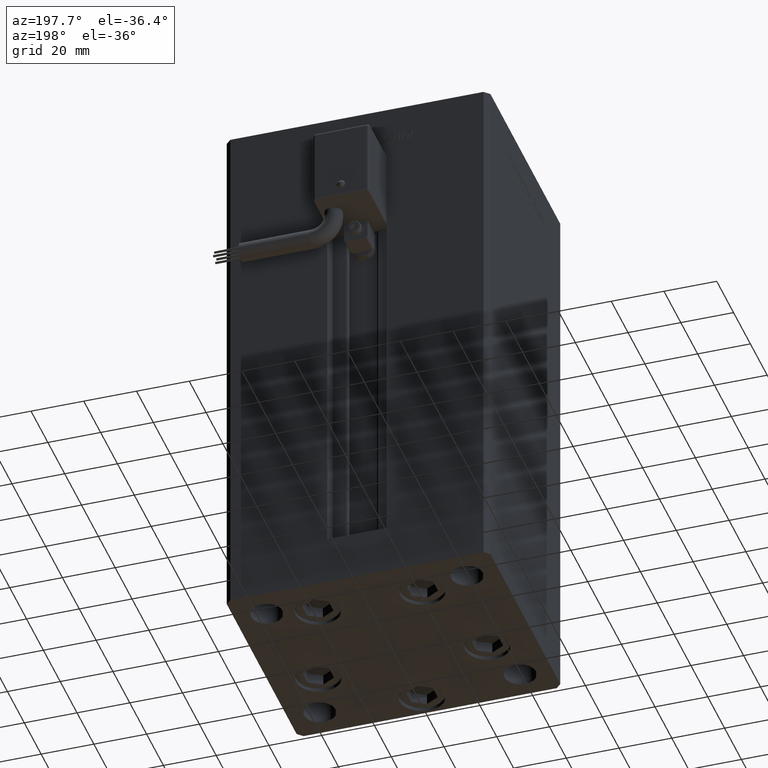
[diagram: clean part render]
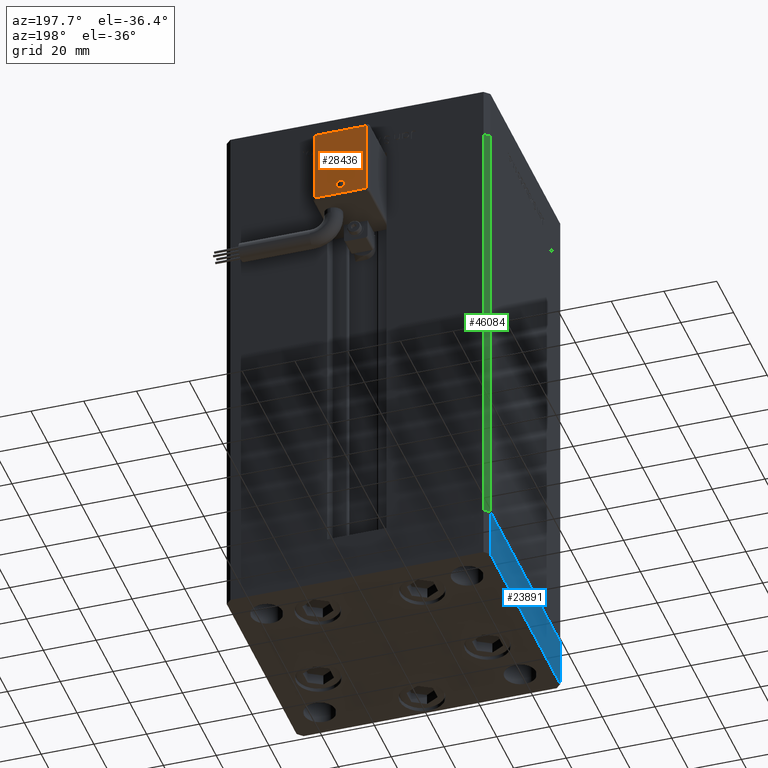
[diagram: same view with three faces highlighted in distinct colors, each labeled with its STEP entity id]
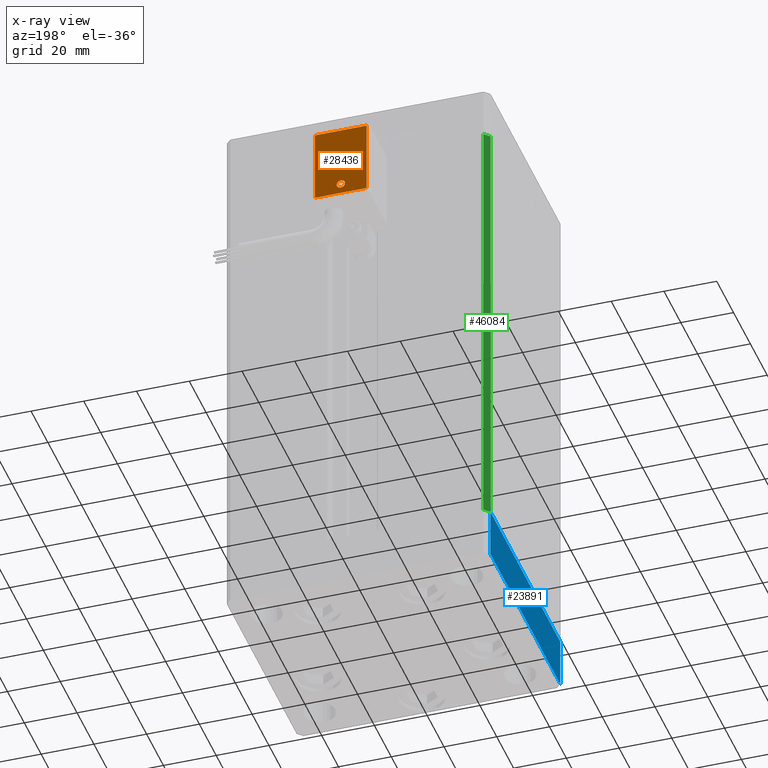
[diagram: x-ray of the same camera — body ghosted, the three highlighted faces saturated]
A machine part, auxiliary view with three faces highlighted in distinct colors.
The next image is the same camera in x-ray (body ghosted, the three faces saturated) — at least one of them is partly hidden behind the body in this view.
Their STEP definitions:

[orange] entity #28436 — the highlighted planar face has unit normal (0, 1, 0).
#1149 = ORIENTED_EDGE ( 'NONE', *, *, #29484, .T. ) ;
#3149 = CARTESIAN_POINT ( 'NONE',  ( -2.664535259099999904E-33, 51.59999999999998721, 1.277460843040079085E-14 ) ) ;
#5206 = EDGE_LOOP ( 'NONE', ( #10152, #36069, #39854, #1149 ) ) ;
#5409 = DIRECTION ( 'NONE',  ( 1.000000000000000000, 0.000000000000000000, 0.000000000000000000 ) ) ;
#6327 = FACE_OUTER_BOUND ( 'NONE', #5206, .T. ) ;
#6608 = LINE ( 'NONE', #14984, #11442 ) ;
#10152 = ORIENTED_EDGE ( 'NONE', *, *, #45351, .T. ) ;
#11442 = VECTOR ( 'NONE', #23362, 1000.000000000000000 ) ;
#11941 = VECTOR ( 'NONE', #44947, 1000.000000000000000 ) ;
#13310 = VERTEX_POINT ( 'NONE', #14138 ) ;
#13401 = VERTEX_POINT ( 'NONE', #50877 ) ;
#13919 = AXIS2_PLACEMENT_3D ( 'NONE', #16448, #33456, #25092 ) ;
#13920 = CARTESIAN_POINT ( 'NONE',  ( 9.799999999999998934, 51.60000000000000142, -54.00000000000000000 ) ) ;
#14026 = CARTESIAN_POINT ( 'NONE',  ( -9.799999999999998934, 51.60000000000000142, -54.00000000000000000 ) ) ;
#14138 = CARTESIAN_POINT ( 'NONE',  ( -9.799999999999998934, 51.59999999999999432, -26.00000000000000000 ) ) ;
#14984 = CARTESIAN_POINT ( 'NONE',  ( 9.799999999999998934, 51.60000000000000142, -54.00000000000000000 ) ) ;
#16448 = CARTESIAN_POINT ( 'NONE',  ( 1.122044604924999863E-14, 51.60000000000000142, -50.00000000000000000 ) ) ;
#17978 = VERTEX_POINT ( 'NONE', #14026 ) ;
#19120 = CARTESIAN_POINT ( 'NONE',  ( 9.799999999999998934, 51.59999999999999432, -26.00000000000000000 ) ) ;
#20165 = ORIENTED_EDGE ( 'NONE', *, *, #41878, .T. ) ;
#21216 = DIRECTION ( 'NONE',  ( 0.000000000000000000, -1.000000000000000000, -2.478176394252581634E-16 ) ) ;
#22440 = LINE ( 'NONE', #52787, #45192 ) ;
#23212 = CARTESIAN_POINT ( 'NONE',  ( 1.157444300081134802E-14, 51.60000000000000142, -51.59426053914221200 ) ) ;
#23362 = DIRECTION ( 'NONE',  ( -1.000000000000000000, 0.000000000000000000, 0.000000000000000000 ) ) ;
#24649 = PLANE ( 'NONE',  #25276 ) ;
#24789 = AXIS2_PLACEMENT_3D ( 'NONE', #25393, #21216, #38751 ) ;
#25092 = DIRECTION ( 'NONE',  ( 0.000000000000000000, 0.000000000000000000, 1.000000000000000000 ) ) ;
#25276 = AXIS2_PLACEMENT_3D ( 'NONE', #3149, #46100, #37178 ) ;
#25393 = CARTESIAN_POINT ( 'NONE',  ( 1.122044604924999863E-14, 51.60000000000000142, -50.00000000000000000 ) ) ;
#26750 = EDGE_LOOP ( 'NONE', ( #20165, #39254 ) ) ;
#28436 = ADVANCED_FACE ( 'NONE', ( #36907, #6327 ), #24649, .T. ) ;
#29484 = EDGE_CURVE ( 'NONE', #17978, #13310, #30761, .T. ) ;
#30117 = CIRCLE ( 'NONE', #24789, 1.594260539142210220 ) ;
#30761 = LINE ( 'NONE', #32409, #11941 ) ;
#32409 = CARTESIAN_POINT ( 'NONE',  ( -9.799999999999998934, 51.60000000000000142, -54.00000000000000000 ) ) ;
#33199 = VERTEX_POINT ( 'NONE', #13920 ) ;
#33456 = DIRECTION ( 'NONE',  ( 0.000000000000000000, -1.000000000000000000, -2.478176394252581634E-16 ) ) ;
#35029 = LINE ( 'NONE', #19120, #44156 ) ;
#35920 = VERTEX_POINT ( 'NONE', #51791 ) ;
#36069 = ORIENTED_EDGE ( 'NONE', *, *, #40941, .T. ) ;
#36907 = FACE_BOUND ( 'NONE', #26750, .T. ) ;
#37178 = DIRECTION ( 'NONE',  ( 0.000000000000000000, -2.478176394252581634E-16, 1.000000000000000000 ) ) ;
#37540 = EDGE_CURVE ( 'NONE', #33199, #17978, #6608, .T. ) ;
#38751 = DIRECTION ( 'NONE',  ( 0.000000000000000000, 0.000000000000000000, 1.000000000000000000 ) ) ;
#39254 = ORIENTED_EDGE ( 'NONE', *, *, #46848, .T. ) ;
#39473 = DIRECTION ( 'NONE',  ( 0.000000000000000000, 2.478176394252581634E-16, -1.000000000000000000 ) ) ;
#39854 = ORIENTED_EDGE ( 'NONE', *, *, #37540, .T. ) ;
#40941 = EDGE_CURVE ( 'NONE', #13401, #33199, #35029, .T. ) ;
#41878 = EDGE_CURVE ( 'NONE', #53877, #35920, #53982, .T. ) ;
#44156 = VECTOR ( 'NONE', #39473, 1000.000000000000000 ) ;
#44947 = DIRECTION ( 'NONE',  ( 0.000000000000000000, -2.478176394252581634E-16, 1.000000000000000000 ) ) ;
#45192 = VECTOR ( 'NONE', #5409, 1000.000000000000000 ) ;
#45351 = EDGE_CURVE ( 'NONE', #13310, #13401, #22440, .T. ) ;
#46100 = DIRECTION ( 'NONE',  ( -0.000000000000000000, 1.000000000000000000, 2.478176394252581634E-16 ) ) ;
#46848 = EDGE_CURVE ( 'NONE', #35920, #53877, #30117, .T. ) ;
#50877 = CARTESIAN_POINT ( 'NONE',  ( 9.799999999999998934, 51.59999999999999432, -26.00000000000000000 ) ) ;
#51791 = CARTESIAN_POINT ( 'NONE',  ( 1.067120849106190655E-14, 51.60000000000000142, -48.40573946085779511 ) ) ;
#52787 = CARTESIAN_POINT ( 'NONE',  ( -9.799999999999998934, 51.59999999999999432, -26.00000000000000000 ) ) ;
#53877 = VERTEX_POINT ( 'NONE', #23212 ) ;
#53982 = CIRCLE ( 'NONE', #13919, 1.594260539142210220 ) ;

[blue] entity #23891 — the highlighted planar face has unit normal (-1, 0, 0).
#1083 = DIRECTION ( 'NONE',  ( 0.000000000000000000, 0.000000000000000000, 1.000000000000000000 ) ) ;
#2808 = DIRECTION ( 'NONE',  ( -1.003213576468515193E-15, 1.000000000000000000, 0.000000000000000000 ) ) ;
#5280 = LINE ( 'NONE', #27033, #10353 ) ;
#9696 = CARTESIAN_POINT ( 'NONE',  ( 50.00000000000000000, -41.49999999999999289, 0.000000000000000000 ) ) ;
#10353 = VECTOR ( 'NONE', #1083, 1000.000000000000000 ) ;
#10673 = ORIENTED_EDGE ( 'NONE', *, *, #36086, .F. ) ;
#11080 = DIRECTION ( 'NONE',  ( -1.003213576468515193E-15, 1.000000000000000000, 0.000000000000000000 ) ) ;
#16089 = CARTESIAN_POINT ( 'NONE',  ( 50.00000000000000000, -41.49999999999999289, -19.00000000000000000 ) ) ;
#17237 = DIRECTION ( 'NONE',  ( 0.000000000000000000, 0.000000000000000000, 1.000000000000000000 ) ) ;
#18746 = LINE ( 'NONE', #41021, #26956 ) ;
#19399 = VERTEX_POINT ( 'NONE', #31739 ) ;
#19906 = AXIS2_PLACEMENT_3D ( 'NONE', #16089, #49267, #11080 ) ;
#22204 = EDGE_CURVE ( 'NONE', #44946, #19399, #18746, .T. ) ;
#23891 = ADVANCED_FACE ( 'NONE', ( #41172 ), #54268, .T. ) ;
#25598 = LINE ( 'NONE', #42593, #42139 ) ;
#25992 = ORIENTED_EDGE ( 'NONE', *, *, #22204, .T. ) ;
#26956 = VECTOR ( 'NONE', #2808, 1000.000000000000000 ) ;
#27033 = CARTESIAN_POINT ( 'NONE',  ( 50.00000000000000000, -41.49999999999999289, -19.00000000000000000 ) ) ;
#27094 = VERTEX_POINT ( 'NONE', #42861 ) ;
#28293 = EDGE_CURVE ( 'NONE', #19399, #29436, #25598, .T. ) ;
#29436 = VERTEX_POINT ( 'NONE', #51658 ) ;
#31739 = CARTESIAN_POINT ( 'NONE',  ( 49.99999999999992184, 41.49999999999998579, -19.00000000000000000 ) ) ;
#34442 = ORIENTED_EDGE ( 'NONE', *, *, #35109, .F. ) ;
#35072 = LINE ( 'NONE', #9696, #37083 ) ;
#35109 = EDGE_CURVE ( 'NONE', #44946, #27094, #5280, .T. ) ;
#35510 = EDGE_LOOP ( 'NONE', ( #10673, #34442, #25992, #55009 ) ) ;
#35619 = DIRECTION ( 'NONE',  ( -1.003213576468515193E-15, 1.000000000000000000, 0.000000000000000000 ) ) ;
#36086 = EDGE_CURVE ( 'NONE', #27094, #29436, #35072, .T. ) ;
#37083 = VECTOR ( 'NONE', #35619, 1000.000000000000000 ) ;
#41021 = CARTESIAN_POINT ( 'NONE',  ( 50.00000000000000000, -41.49999999999999289, -19.00000000000000000 ) ) ;
#41172 = FACE_OUTER_BOUND ( 'NONE', #35510, .T. ) ;
#42139 = VECTOR ( 'NONE', #17237, 1000.000000000000000 ) ;
#42593 = CARTESIAN_POINT ( 'NONE',  ( 49.99999999999992184, 41.49999999999998579, -19.00000000000000000 ) ) ;
#42861 = CARTESIAN_POINT ( 'NONE',  ( 50.00000000000000000, -41.49999999999999289, 0.000000000000000000 ) ) ;
#44946 = VERTEX_POINT ( 'NONE', #50726 ) ;
#49267 = DIRECTION ( 'NONE',  ( 1.000000000000000000, 1.003213576468515193E-15, -0.000000000000000000 ) ) ;
#50726 = CARTESIAN_POINT ( 'NONE',  ( 50.00000000000000000, -41.49999999999999289, -19.00000000000000000 ) ) ;
#51658 = CARTESIAN_POINT ( 'NONE',  ( 49.99999999999992184, 41.49999999999998579, 0.000000000000000000 ) ) ;
#54268 = PLANE ( 'NONE',  #19906 ) ;
#55009 = ORIENTED_EDGE ( 'NONE', *, *, #28293, .T. ) ;

[green] entity #46084 — the highlighted planar face has unit normal (0.7071, -0.7071, 0).
#503 = EDGE_CURVE ( 'NONE', #53820, #39958, #27046, .T. ) ;
#2687 = CARTESIAN_POINT ( 'NONE',  ( -50.00000000000001421, 41.49999999999999289, 0.000000000000000000 ) ) ;
#4363 = LINE ( 'NONE', #4642, #38023 ) ;
#4642 = CARTESIAN_POINT ( 'NONE',  ( -48.00000000000000711, 43.50000000000000000, 168.5000000000000000 ) ) ;
#5854 = DIRECTION ( 'NONE',  ( -0.7071067811865487940, -0.7071067811865463515, 0.000000000000000000 ) ) ;
#8854 = DIRECTION ( 'NONE',  ( -0.000000000000000000, -0.000000000000000000, -1.000000000000000000 ) ) ;
#8971 = VECTOR ( 'NONE', #40801, 1000.000000000000000 ) ;
#10683 = ORIENTED_EDGE ( 'NONE', *, *, #13101, .F. ) ;
#12457 = VECTOR ( 'NONE', #5854, 1000.000000000000000 ) ;
#13101 = EDGE_CURVE ( 'NONE', #43416, #39958, #46778, .T. ) ;
#15643 = EDGE_CURVE ( 'NONE', #17658, #53820, #19346, .T. ) ;
#17658 = VERTEX_POINT ( 'NONE', #40001 ) ;
#19346 = LINE ( 'NONE', #36343, #8971 ) ;
#21401 = DIRECTION ( 'NONE',  ( -0.7071067811865487940, -0.7071067811865463515, 0.000000000000000000 ) ) ;
#22233 = VECTOR ( 'NONE', #8854, 1000.000000000000000 ) ;
#27046 = LINE ( 'NONE', #44046, #12457 ) ;
#28134 = DIRECTION ( 'NONE',  ( 0.7071067811865463515, -0.7071067811865487940, 0.000000000000000000 ) ) ;
#31774 = CARTESIAN_POINT ( 'NONE',  ( -48.00000000000000711, 43.50000000000000000, 168.5000000000000000 ) ) ;
#32047 = DIRECTION ( 'NONE',  ( 0.7071067811865487940, 0.7071067811865463515, 0.000000000000000000 ) ) ;
#33776 = ORIENTED_EDGE ( 'NONE', *, *, #44612, .F. ) ;
#36215 = FACE_OUTER_BOUND ( 'NONE', #51216, .T. ) ;
#36343 = CARTESIAN_POINT ( 'NONE',  ( -48.00000000000000711, 43.50000000000000000, 168.5000000000000000 ) ) ;
#38023 = VECTOR ( 'NONE', #21401, 1000.000000000000000 ) ;
#39958 = VERTEX_POINT ( 'NONE', #2687 ) ;
#40001 = CARTESIAN_POINT ( 'NONE',  ( -48.00000000000000711, 43.50000000000000000, 168.5000000000000000 ) ) ;
#40801 = DIRECTION ( 'NONE',  ( -0.000000000000000000, -0.000000000000000000, -1.000000000000000000 ) ) ;
#42359 = CARTESIAN_POINT ( 'NONE',  ( -48.00000000000000711, 43.50000000000000000, 0.000000000000000000 ) ) ;
#43416 = VERTEX_POINT ( 'NONE', #54344 ) ;
#44046 = CARTESIAN_POINT ( 'NONE',  ( -48.00000000000000711, 43.50000000000000000, 0.000000000000000000 ) ) ;
#44612 = EDGE_CURVE ( 'NONE', #17658, #43416, #4363, .T. ) ;
#46084 = ADVANCED_FACE ( 'NONE', ( #36215 ), #49311, .F. ) ;
#46778 = LINE ( 'NONE', #50946, #22233 ) ;
#49311 = PLANE ( 'NONE',  #53224 ) ;
#50946 = CARTESIAN_POINT ( 'NONE',  ( -50.00000000000001421, 41.49999999999999289, 168.5000000000000000 ) ) ;
#51216 = EDGE_LOOP ( 'NONE', ( #53418, #10683, #33776, #51464 ) ) ;
#51464 = ORIENTED_EDGE ( 'NONE', *, *, #15643, .T. ) ;
#53224 = AXIS2_PLACEMENT_3D ( 'NONE', #31774, #28134, #32047 ) ;
#53418 = ORIENTED_EDGE ( 'NONE', *, *, #503, .T. ) ;
#53820 = VERTEX_POINT ( 'NONE', #42359 ) ;
#54344 = CARTESIAN_POINT ( 'NONE',  ( -50.00000000000001421, 41.49999999999999289, 168.5000000000000000 ) ) ;